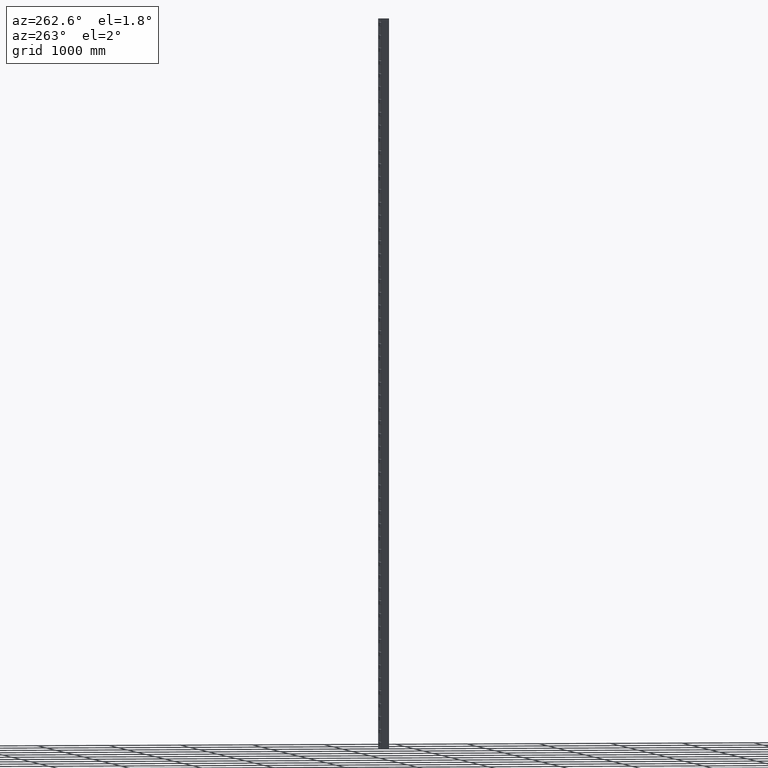
[diagram: clean part render]
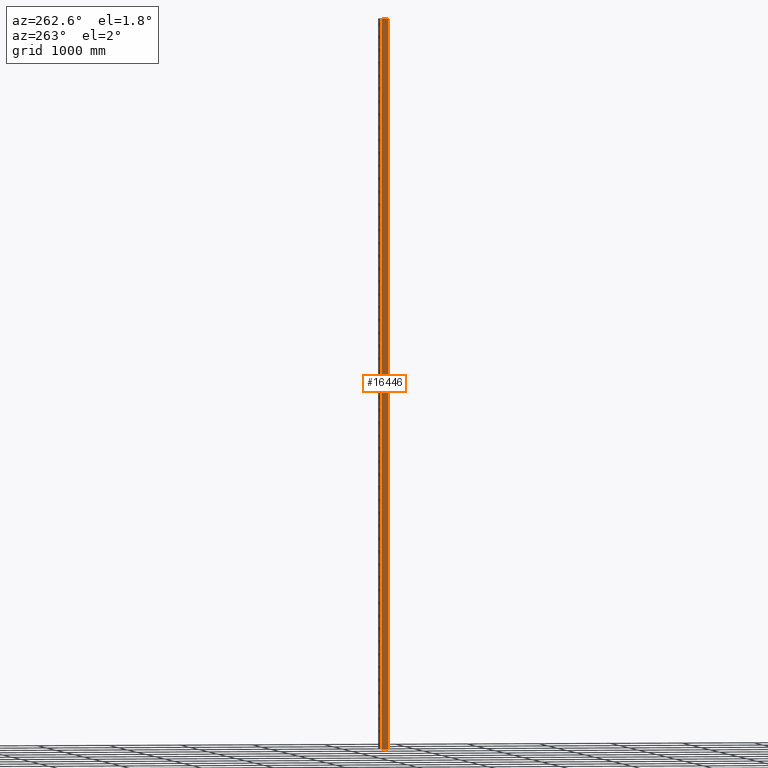
[diagram: same view with one face highlighted and labeled with its STEP entity id]
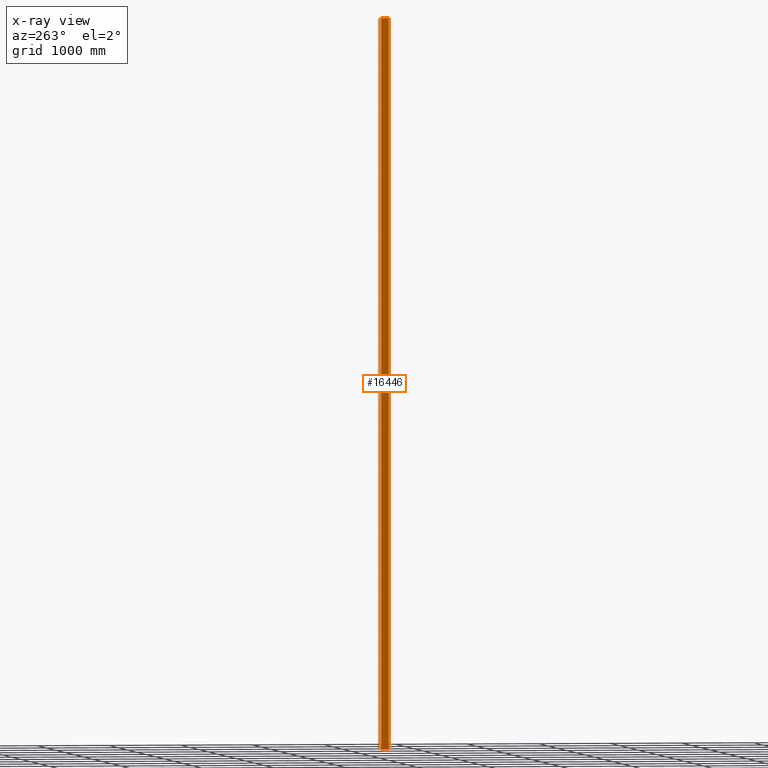
[diagram: x-ray of the same camera — body ghosted, the highlighted face saturated]
A machine part, auxiliary view. The second image highlights one B-rep face of the part: STEP entity #16446.
The next image is the same camera in x-ray: the body ghosted, the highlighted face saturated — about 0% of this face is hidden behind the body in this view.
In plain terms, the highlighted planar face has unit normal (-0.9986, 0.0526, 0).
Its self-contained STEP definition (entity closure, byte-faithful):
#6359=CARTESIAN_POINT('',(-17.57502307658627,106.15960020593775,10120.0));
#6360=VERTEX_POINT('',#6359);
#6368=CARTESIAN_POINT('',(-22.720518594779683,8.420579608461804,10120.0));
#6369=VERTEX_POINT('',#6368);
#6370=CARTESIAN_POINT('',(-22.720518594779691,8.420579608461804,10120.0));
#6371=DIRECTION('',(0.052572451057725,0.998617112505981,0.0));
#6372=VECTOR('',#6371,97.874369839512013);
#6373=LINE('',#6370,#6372);
#6374=EDGE_CURVE('',#6369,#6360,#6373,.T.);
#16380=CARTESIAN_POINT('',(-22.720518594779683,8.420579608461804,0.0));
#16381=VERTEX_POINT('',#16380);
#16396=CARTESIAN_POINT('',(-22.720518594779683,8.420579608461804,0.0));
#16397=DIRECTION('',(0.0,0.0,1.0));
#16398=VECTOR('',#16397,10120.0);
#16399=LINE('',#16396,#16398);
#16400=EDGE_CURVE('',#16381,#6369,#16399,.T.);
#16410=CARTESIAN_POINT('',(-17.57502307658627,106.15960020593775,0.0));
#16411=VERTEX_POINT('',#16410);
#16419=CARTESIAN_POINT('',(-17.57502307658627,106.15960020593775,0.0));
#16420=DIRECTION('',(0.0,0.0,1.0));
#16421=VECTOR('',#16420,10120.0);
#16422=LINE('',#16419,#16421);
#16423=EDGE_CURVE('',#16411,#6360,#16422,.T.);
#16430=CARTESIAN_POINT('',(-17.57502307658627,106.15960020593775,10000.0));
#16431=DIRECTION('',(-0.998617112505981,0.052572451057725,0.0));
#16432=DIRECTION('',(0.0,0.0,1.0));
#16433=AXIS2_PLACEMENT_3D('',#16430,#16431,#16432);
#16434=PLANE('',#16433);
#16435=CARTESIAN_POINT('',(-22.720518594779683,8.420579608461804,7.105427E-013));
#16436=DIRECTION('',(0.052572451057725,0.998617112505981,0.0));
#16437=VECTOR('',#16436,97.874369839512013);
#16438=LINE('',#16435,#16437);
#16439=EDGE_CURVE('',#16381,#16411,#16438,.T.);
#16440=ORIENTED_EDGE('',*,*,#16439,.F.);
#16441=ORIENTED_EDGE('',*,*,#16400,.T.);
#16442=ORIENTED_EDGE('',*,*,#6374,.T.);
#16443=ORIENTED_EDGE('',*,*,#16423,.F.);
#16444=EDGE_LOOP('',(#16440,#16441,#16442,#16443));
#16445=FACE_OUTER_BOUND('',#16444,.T.);
#16446=ADVANCED_FACE('',(#16445),#16434,.T.);